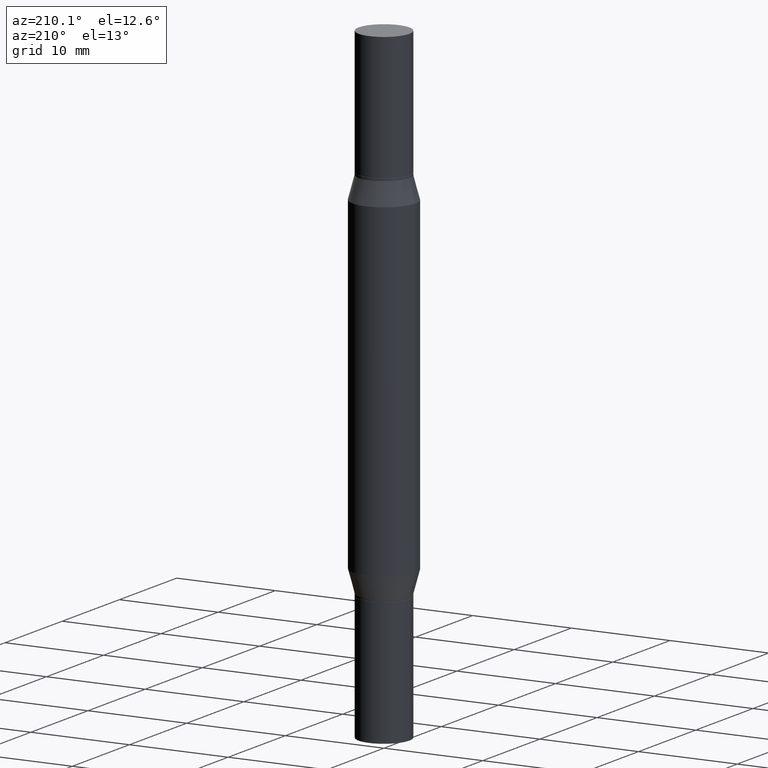
[diagram: clean part render]
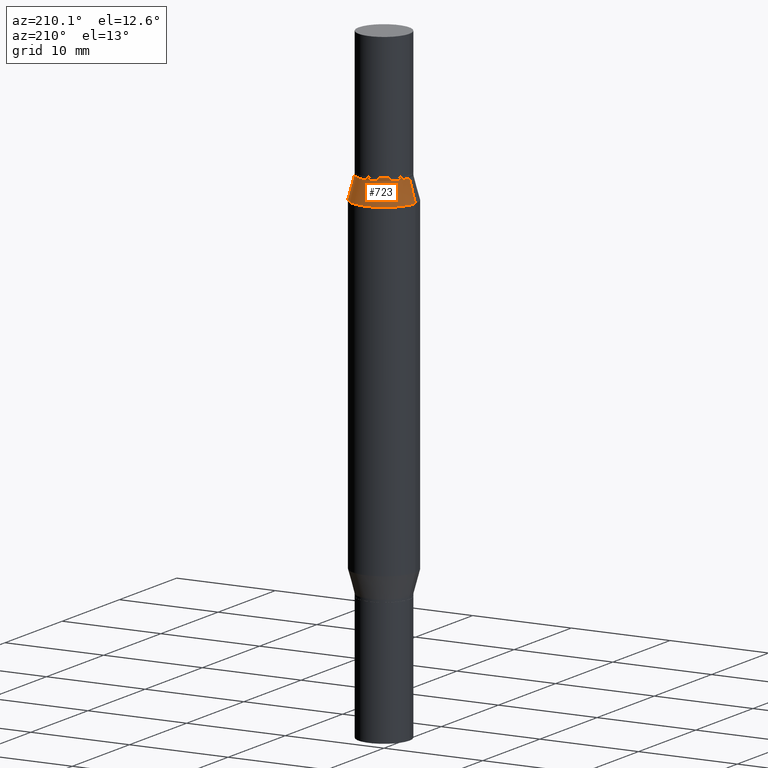
[diagram: same view with one face highlighted and labeled with its STEP entity id]
A machine part, auxiliary view. The second image highlights one B-rep face of the part: STEP entity #723.
In plain terms, the highlighted conical surface has half-angle 15 deg.
Its self-contained STEP definition (entity closure, byte-faithful):
#7 = EDGE_LOOP ( 'NONE', ( #699, #916, #94, #30 ) ) ;
#30 = ORIENTED_EDGE ( 'NONE', *, *, #516, .T. ) ;
#63 = VECTOR ( 'NONE', #64, 39.37007874015748854 ) ;
#64 = DIRECTION ( 'NONE',  ( 0.2588190451025219607, -5.180148453816008779E-15, -0.9659258262890678681 ) ) ;
#68 = DIRECTION ( 'NONE',  ( 1.000000000000000000, -6.982962677686268288E-15, 0.000000000000000000 ) ) ;
#93 = CARTESIAN_POINT ( 'NONE',  ( 0.1015499999999997377, -2.489535763201737721E-15, -0.5099999999999994538 ) ) ;
#94 = ORIENTED_EDGE ( 'NONE', *, *, #344, .T. ) ;
#115 = DIRECTION ( 'NONE',  ( 1.000000000000000000, -6.982962677686268288E-15, 0.000000000000000000 ) ) ;
#143 = CARTESIAN_POINT ( 'NONE',  ( 4.866482924308422209E-29, -1.780415903282698911E-15, -0.5099999999999994538 ) ) ;
#153 = AXIS2_PLACEMENT_3D ( 'NONE', #930, #965, #277 ) ;
#167 = VERTEX_POINT ( 'NONE', #337 ) ;
#197 = FACE_OUTER_BOUND ( 'NONE', #7, .T. ) ;
#216 = LINE ( 'NONE', #517, #63 ) ;
#234 = EDGE_CURVE ( 'NONE', #767, #167, #552, .T. ) ;
#237 = VECTOR ( 'NONE', #562, 39.37007874015748854 ) ;
#239 = CIRCLE ( 'NONE', #638, 0.1015499999999997377 ) ;
#261 = CARTESIAN_POINT ( 'NONE',  ( -0.1015499999999997377, -1.083732331609001856E-15, -0.5099999999999994538 ) ) ;
#277 = DIRECTION ( 'NONE',  ( 1.000000000000000000, -6.982962677686266711E-15, 0.000000000000000000 ) ) ;
#337 = CARTESIAN_POINT ( 'NONE',  ( -0.1250000000000000000, -1.228444533436318603E-15, -0.5975165914374901410 ) ) ;
#344 = EDGE_CURVE ( 'NONE', #396, #423, #216, .T. ) ;
#396 = VERTEX_POINT ( 'NONE', #93 ) ;
#423 = VERTEX_POINT ( 'NONE', #743 ) ;
#447 = AXIS2_PLACEMENT_3D ( 'NONE', #968, #787, #115 ) ;
#516 = EDGE_CURVE ( 'NONE', #423, #167, #826, .T. ) ;
#517 = CARTESIAN_POINT ( 'NONE',  ( 0.1015499999999997377, -2.489535763201737721E-15, -0.5099999999999994538 ) ) ;
#552 = LINE ( 'NONE', #261, #237 ) ;
#562 = DIRECTION ( 'NONE',  ( -0.2588190451025219607, -1.597197180879709001E-15, -0.9659258262890678681 ) ) ;
#638 = AXIS2_PLACEMENT_3D ( 'NONE', #143, #739, #68 ) ;
#699 = ORIENTED_EDGE ( 'NONE', *, *, #234, .F. ) ;
#723 = ADVANCED_FACE ( 'NONE', ( #197 ), #737, .T. ) ;
#737 = CONICAL_SURFACE ( 'NONE', #447, 0.1015499999999997377, 0.2617993877991507401 ) ;
#739 = DIRECTION ( 'NONE',  ( 2.445468806185136597E-29, 3.491805094961124077E-15, 1.000000000000000000 ) ) ;
#743 = CARTESIAN_POINT ( 'NONE',  ( 0.1250000000000000000, -2.958877117868543782E-15, -0.5975165914374901410 ) ) ;
#767 = VERTEX_POINT ( 'NONE', #961 ) ;
#787 = DIRECTION ( 'NONE',  ( -2.445468806185136597E-29, -3.491805094961124077E-15, -1.000000000000000000 ) ) ;
#826 = CIRCLE ( 'NONE', #153, 0.1250000000000000000 ) ;
#872 = EDGE_CURVE ( 'NONE', #396, #767, #239, .T. ) ;
#916 = ORIENTED_EDGE ( 'NONE', *, *, #872, .F. ) ;
#930 = CARTESIAN_POINT ( 'NONE',  ( 4.652463829924389037E-29, -2.086006783157758077E-15, -0.5975165914374901410 ) ) ;
#961 = CARTESIAN_POINT ( 'NONE',  ( -0.1015499999999997377, -1.067146257407934882E-15, -0.5099999999999994538 ) ) ;
#965 = DIRECTION ( 'NONE',  ( 2.445468806185136597E-29, 3.491805094961124077E-15, 1.000000000000000000 ) ) ;
#968 = CARTESIAN_POINT ( 'NONE',  ( 4.866482924308422209E-29, -1.780415903282698911E-15, -0.5099999999999994538 ) ) ;